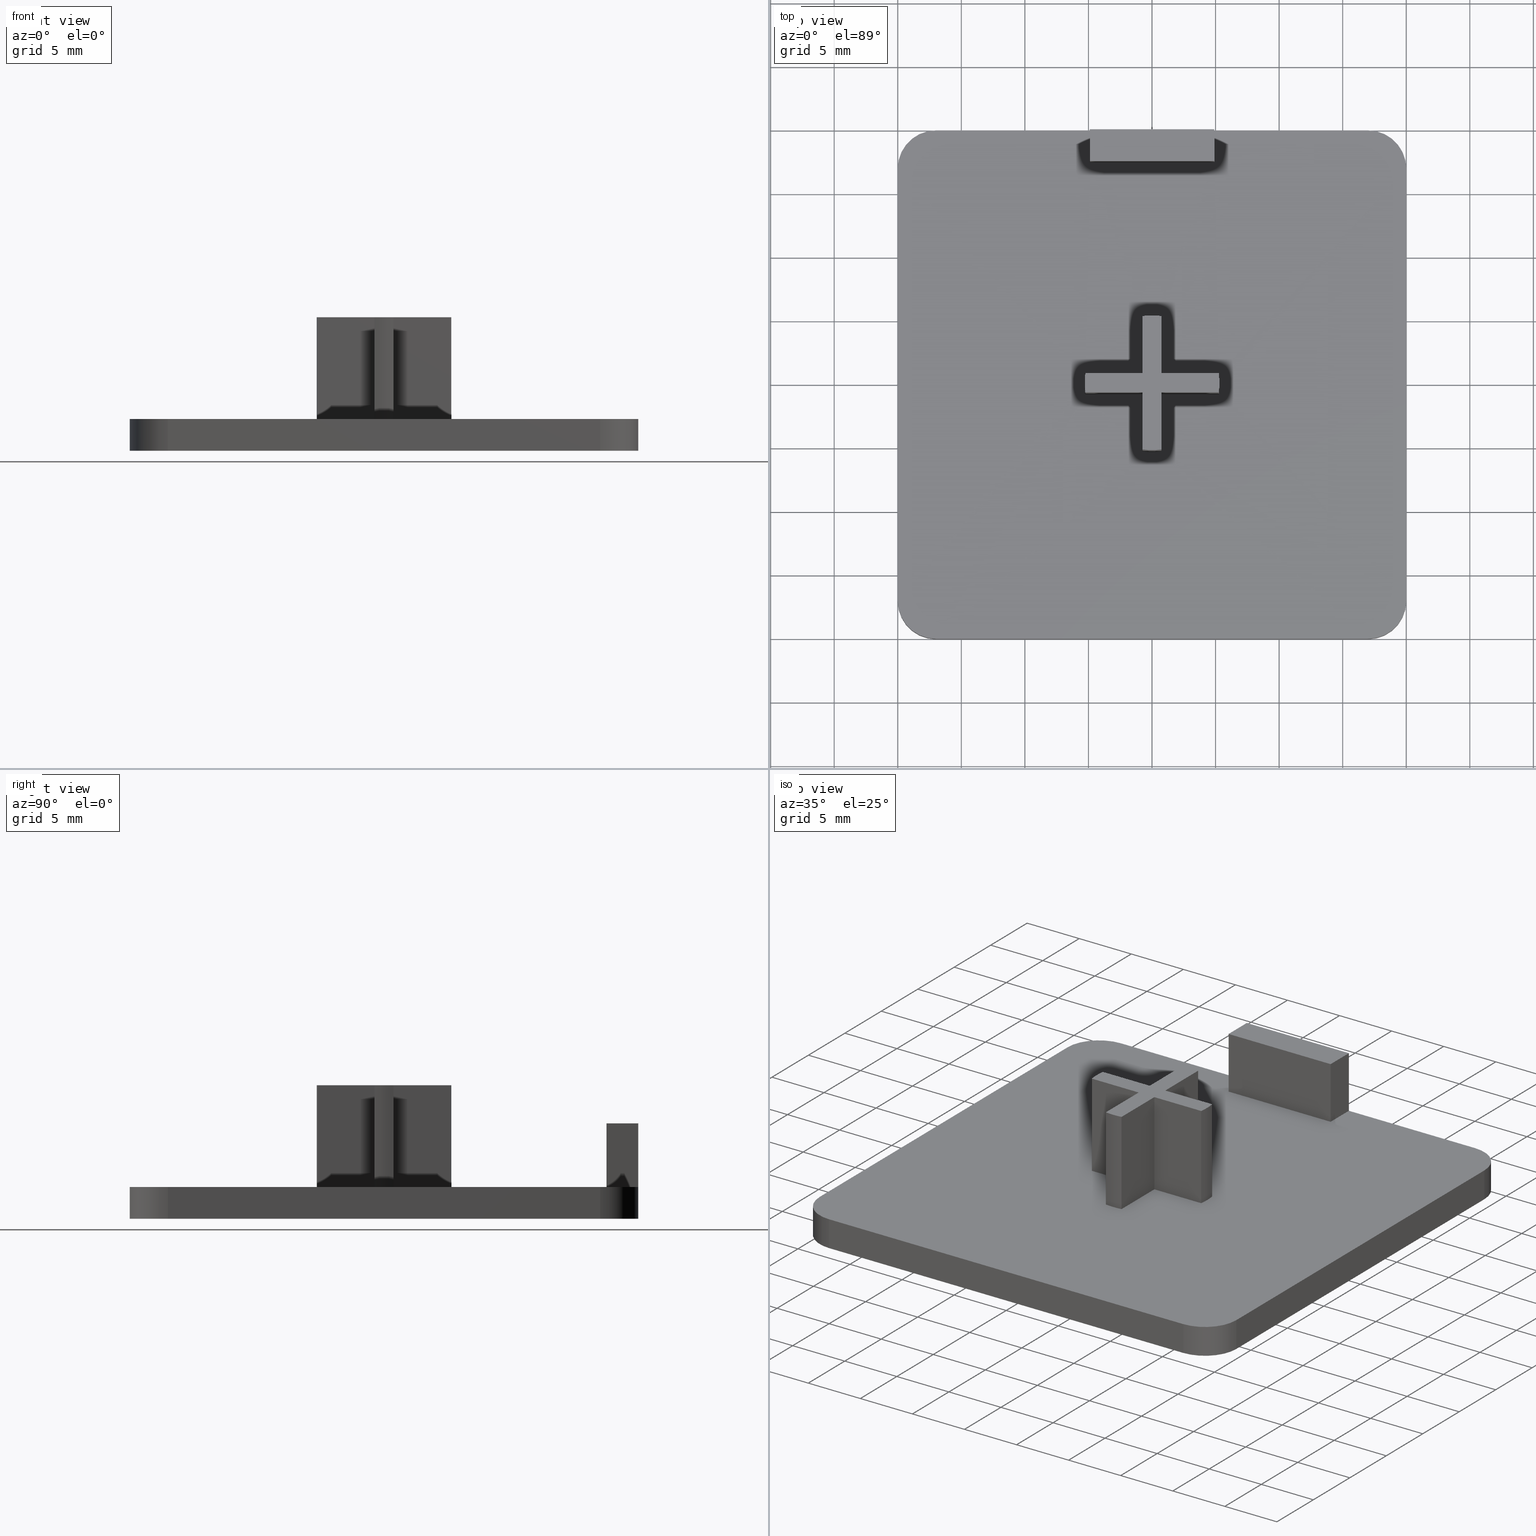
[diagram: canonical four-view strip — front | top / right | iso, engineering-drawing reading convention]
A machine part, canonical four-view strip (front | top / right | iso — engineering-drawing reading convention). The complete STEP part file that produces these views, byte-faithful:
ISO-10303-21;
HEADER;
/* Generated by software containing ST-Developer
 * from STEP Tools, Inc. (www.steptools.com) 
 */

FILE_DESCRIPTION(
/* description */ ('TAPPO 40x40 GRIGIO - CAVA 10'),
/* implementation_level */ '2;1');

FILE_NAME(
/* name */ 
'Q:\\Catalogo\\2_Accessori Dierre\\Per Download Web e catalogo cartace
o\\CATALOGO TAPPI DI CHIUSURA\\PAGINA 89\\DTPTR0000036.stp',
/* time_stamp */ '2018-11-08T10:21:41+01:00',
/* author */ ('fzagni'),
/* organization */ (''),
/* preprocessor_version */ 'ST-DEVELOPER v16.1',
/* originating_system */ 'Autodesk Inventor 2016',
/* authorisation */ '');

FILE_SCHEMA (('AUTOMOTIVE_DESIGN { 1 0 10303 214 3 1 1 }'));
ENDSEC;

DATA;
#10=MECHANICAL_DESIGN_GEOMETRIC_PRESENTATION_REPRESENTATION('',(#13),#857);
#11=SHAPE_REPRESENTATION_RELATIONSHIP('SRR','None',#866,#12);
#12=ADVANCED_BREP_SHAPE_REPRESENTATION('',(#14),#856);
#13=STYLED_ITEM('',(#875),#14);
#14=MANIFOLD_SOLID_BREP('Solido1',#517);
#15=FACE_BOUND('',#94,.T.);
#16=CIRCLE('',#521,5.3);
#17=CIRCLE('',#522,5.3);
#18=CIRCLE('',#526,5.3);
#19=CIRCLE('',#527,5.3);
#20=CIRCLE('',#531,5.29999999999997);
#21=CIRCLE('',#532,5.29999999999997);
#22=CIRCLE('',#536,5.3);
#23=CIRCLE('',#537,5.3);
#24=CIRCLE('',#546,3.00000000000001);
#25=CIRCLE('',#547,3.);
#26=CIRCLE('',#548,3.);
#27=CIRCLE('',#549,3.00000000000001);
#28=CIRCLE('',#551,3.00000000000001);
#29=CIRCLE('',#554,3.);
#30=CIRCLE('',#557,3.);
#31=CIRCLE('',#560,3.00000000000001);
#32=CYLINDRICAL_SURFACE('',#520,5.3);
#33=CYLINDRICAL_SURFACE('',#525,5.3);
#34=CYLINDRICAL_SURFACE('',#530,5.29999999999997);
#35=CYLINDRICAL_SURFACE('',#535,5.3);
#36=CYLINDRICAL_SURFACE('',#550,3.00000000000001);
#37=CYLINDRICAL_SURFACE('',#553,3.);
#38=CYLINDRICAL_SURFACE('',#556,3.);
#39=CYLINDRICAL_SURFACE('',#559,3.00000000000001);
#40=FACE_OUTER_BOUND('',#67,.T.);
#41=FACE_OUTER_BOUND('',#68,.T.);
#42=FACE_OUTER_BOUND('',#69,.T.);
#43=FACE_OUTER_BOUND('',#70,.T.);
#44=FACE_OUTER_BOUND('',#71,.T.);
#45=FACE_OUTER_BOUND('',#72,.T.);
#46=FACE_OUTER_BOUND('',#73,.T.);
#47=FACE_OUTER_BOUND('',#74,.T.);
#48=FACE_OUTER_BOUND('',#75,.T.);
#49=FACE_OUTER_BOUND('',#76,.T.);
#50=FACE_OUTER_BOUND('',#77,.T.);
#51=FACE_OUTER_BOUND('',#78,.T.);
#52=FACE_OUTER_BOUND('',#79,.T.);
#53=FACE_OUTER_BOUND('',#80,.T.);
#54=FACE_OUTER_BOUND('',#81,.T.);
#55=FACE_OUTER_BOUND('',#82,.T.);
#56=FACE_OUTER_BOUND('',#83,.T.);
#57=FACE_OUTER_BOUND('',#84,.T.);
#58=FACE_OUTER_BOUND('',#85,.T.);
#59=FACE_OUTER_BOUND('',#86,.T.);
#60=FACE_OUTER_BOUND('',#87,.T.);
#61=FACE_OUTER_BOUND('',#88,.T.);
#62=FACE_OUTER_BOUND('',#89,.T.);
#63=FACE_OUTER_BOUND('',#90,.T.);
#64=FACE_OUTER_BOUND('',#91,.T.);
#65=FACE_OUTER_BOUND('',#92,.T.);
#66=FACE_OUTER_BOUND('',#93,.T.);
#67=EDGE_LOOP('',(#327,#328,#329,#330));
#68=EDGE_LOOP('',(#331,#332,#333,#334));
#69=EDGE_LOOP('',(#335,#336,#337,#338));
#70=EDGE_LOOP('',(#339,#340,#341,#342));
#71=EDGE_LOOP('',(#343,#344,#345,#346));
#72=EDGE_LOOP('',(#347,#348,#349,#350));
#73=EDGE_LOOP('',(#351,#352,#353,#354));
#74=EDGE_LOOP('',(#355,#356,#357,#358));
#75=EDGE_LOOP('',(#359,#360,#361,#362));
#76=EDGE_LOOP('',(#363,#364,#365,#366));
#77=EDGE_LOOP('',(#367,#368,#369,#370));
#78=EDGE_LOOP('',(#371,#372,#373,#374));
#79=EDGE_LOOP('',(#375,#376,#377,#378,#379,#380,#381,#382,#383,#384,#385,
#386));
#80=EDGE_LOOP('',(#387,#388,#389,#390));
#81=EDGE_LOOP('',(#391,#392,#393,#394));
#82=EDGE_LOOP('',(#395,#396,#397,#398));
#83=EDGE_LOOP('',(#399,#400,#401,#402));
#84=EDGE_LOOP('',(#403,#404,#405,#406,#407,#408,#409,#410));
#85=EDGE_LOOP('',(#411,#412,#413,#414,#415,#416,#417,#418));
#86=EDGE_LOOP('',(#419,#420,#421,#422));
#87=EDGE_LOOP('',(#423,#424,#425,#426));
#88=EDGE_LOOP('',(#427,#428,#429,#430));
#89=EDGE_LOOP('',(#431,#432,#433,#434));
#90=EDGE_LOOP('',(#435,#436,#437,#438));
#91=EDGE_LOOP('',(#439,#440,#441,#442));
#92=EDGE_LOOP('',(#443,#444,#445,#446));
#93=EDGE_LOOP('',(#447,#448,#449,#450,#451,#452,#453,#454,#455,#456,#457,
#458));
#94=EDGE_LOOP('',(#459,#460,#461,#462,#463,#464,#465,#466,#467,#468,#469,
#470));
#95=LINE('',#710,#151);
#96=LINE('',#712,#152);
#97=LINE('',#714,#153);
#98=LINE('',#715,#154);
#99=LINE('',#720,#155);
#100=LINE('',#724,#156);
#101=LINE('',#726,#157);
#102=LINE('',#727,#158);
#103=LINE('',#730,#159);
#104=LINE('',#732,#160);
#105=LINE('',#733,#161);
#106=LINE('',#738,#162);
#107=LINE('',#742,#163);
#108=LINE('',#744,#164);
#109=LINE('',#745,#165);
#110=LINE('',#748,#166);
#111=LINE('',#750,#167);
#112=LINE('',#751,#168);
#113=LINE('',#757,#169);
#114=LINE('',#760,#170);
#115=LINE('',#762,#171);
#116=LINE('',#763,#172);
#117=LINE('',#766,#173);
#118=LINE('',#768,#174);
#119=LINE('',#769,#175);
#120=LINE('',#775,#176);
#121=LINE('',#777,#177);
#122=LINE('',#778,#178);
#123=LINE('',#783,#179);
#124=LINE('',#785,#180);
#125=LINE('',#787,#181);
#126=LINE('',#788,#182);
#127=LINE('',#791,#183);
#128=LINE('',#793,#184);
#129=LINE('',#794,#185);
#130=LINE('',#797,#186);
#131=LINE('',#799,#187);
#132=LINE('',#800,#188);
#133=LINE('',#802,#189);
#134=LINE('',#806,#190);
#135=LINE('',#808,#191);
#136=LINE('',#809,#192);
#137=LINE('',#811,#193);
#138=LINE('',#812,#194);
#139=LINE('',#817,#195);
#140=LINE('',#821,#196);
#141=LINE('',#825,#197);
#142=LINE('',#830,#198);
#143=LINE('',#833,#199);
#144=LINE('',#834,#200);
#145=LINE('',#838,#201);
#146=LINE('',#841,#202);
#147=LINE('',#842,#203);
#148=LINE('',#846,#204);
#149=LINE('',#849,#205);
#150=LINE('',#850,#206);
#151=VECTOR('',#566,4.49666560779321);
#152=VECTOR('',#567,8.);
#153=VECTOR('',#568,4.49666560779321);
#154=VECTOR('',#569,8.);
#155=VECTOR('',#574,8.);
#156=VECTOR('',#579,4.49666560779319);
#157=VECTOR('',#580,8.);
#158=VECTOR('',#581,4.49666560779319);
#159=VECTOR('',#584,4.49666560779321);
#160=VECTOR('',#585,8.);
#161=VECTOR('',#586,4.49666560779321);
#162=VECTOR('',#591,8.);
#163=VECTOR('',#596,4.4966656077932);
#164=VECTOR('',#597,8.);
#165=VECTOR('',#598,4.4966656077932);
#166=VECTOR('',#601,4.49666560779318);
#167=VECTOR('',#602,4.49666560779318);
#168=VECTOR('',#603,8.);
#169=VECTOR('',#610,8.);
#170=VECTOR('',#613,4.49666560779319);
#171=VECTOR('',#614,4.49666560779319);
#172=VECTOR('',#615,8.);
#173=VECTOR('',#618,4.49666560779321);
#174=VECTOR('',#619,4.49666560779321);
#175=VECTOR('',#620,8.);
#176=VECTOR('',#627,8.);
#177=VECTOR('',#630,4.49666560779321);
#178=VECTOR('',#631,4.49666560779321);
#179=VECTOR('',#636,9.8);
#180=VECTOR('',#637,5.);
#181=VECTOR('',#638,9.8);
#182=VECTOR('',#639,5.);
#183=VECTOR('',#642,2.50000000000001);
#184=VECTOR('',#643,5.);
#185=VECTOR('',#644,2.50000000000001);
#186=VECTOR('',#647,2.50000000000001);
#187=VECTOR('',#648,2.50000000000001);
#188=VECTOR('',#649,5.);
#189=VECTOR('',#652,9.79999999999998);
#190=VECTOR('',#655,34.);
#191=VECTOR('',#656,2.5);
#192=VECTOR('',#657,12.1);
#193=VECTOR('',#658,12.1);
#194=VECTOR('',#659,2.5);
#195=VECTOR('',#664,34.);
#196=VECTOR('',#667,34.);
#197=VECTOR('',#670,34.);
#198=VECTOR('',#677,2.5);
#199=VECTOR('',#680,34.);
#200=VECTOR('',#681,2.5);
#201=VECTOR('',#686,2.5);
#202=VECTOR('',#689,34.);
#203=VECTOR('',#690,2.5);
#204=VECTOR('',#695,2.5);
#205=VECTOR('',#698,34.);
#206=VECTOR('',#699,2.5);
#207=VERTEX_POINT('',#708);
#208=VERTEX_POINT('',#709);
#209=VERTEX_POINT('',#711);
#210=VERTEX_POINT('',#713);
#211=VERTEX_POINT('',#717);
#212=VERTEX_POINT('',#719);
#213=VERTEX_POINT('',#723);
#214=VERTEX_POINT('',#725);
#215=VERTEX_POINT('',#729);
#216=VERTEX_POINT('',#731);
#217=VERTEX_POINT('',#735);
#218=VERTEX_POINT('',#737);
#219=VERTEX_POINT('',#741);
#220=VERTEX_POINT('',#743);
#221=VERTEX_POINT('',#747);
#222=VERTEX_POINT('',#749);
#223=VERTEX_POINT('',#753);
#224=VERTEX_POINT('',#755);
#225=VERTEX_POINT('',#759);
#226=VERTEX_POINT('',#761);
#227=VERTEX_POINT('',#765);
#228=VERTEX_POINT('',#767);
#229=VERTEX_POINT('',#771);
#230=VERTEX_POINT('',#773);
#231=VERTEX_POINT('',#781);
#232=VERTEX_POINT('',#782);
#233=VERTEX_POINT('',#784);
#234=VERTEX_POINT('',#786);
#235=VERTEX_POINT('',#790);
#236=VERTEX_POINT('',#792);
#237=VERTEX_POINT('',#796);
#238=VERTEX_POINT('',#798);
#239=VERTEX_POINT('',#804);
#240=VERTEX_POINT('',#805);
#241=VERTEX_POINT('',#807);
#242=VERTEX_POINT('',#810);
#243=VERTEX_POINT('',#814);
#244=VERTEX_POINT('',#816);
#245=VERTEX_POINT('',#818);
#246=VERTEX_POINT('',#820);
#247=VERTEX_POINT('',#822);
#248=VERTEX_POINT('',#824);
#249=VERTEX_POINT('',#828);
#250=VERTEX_POINT('',#832);
#251=VERTEX_POINT('',#836);
#252=VERTEX_POINT('',#840);
#253=VERTEX_POINT('',#844);
#254=VERTEX_POINT('',#848);
#255=EDGE_CURVE('',#207,#208,#95,.T.);
#256=EDGE_CURVE('',#207,#209,#96,.T.);
#257=EDGE_CURVE('',#210,#209,#97,.T.);
#258=EDGE_CURVE('',#208,#210,#98,.T.);
#259=EDGE_CURVE('',#211,#207,#16,.T.);
#260=EDGE_CURVE('',#211,#212,#99,.T.);
#261=EDGE_CURVE('',#209,#212,#17,.T.);
#262=EDGE_CURVE('',#213,#211,#100,.T.);
#263=EDGE_CURVE('',#213,#214,#101,.T.);
#264=EDGE_CURVE('',#212,#214,#102,.T.);
#265=EDGE_CURVE('',#215,#213,#103,.T.);
#266=EDGE_CURVE('',#215,#216,#104,.T.);
#267=EDGE_CURVE('',#214,#216,#105,.T.);
#268=EDGE_CURVE('',#217,#215,#18,.T.);
#269=EDGE_CURVE('',#217,#218,#106,.T.);
#270=EDGE_CURVE('',#216,#218,#19,.T.);
#271=EDGE_CURVE('',#219,#217,#107,.T.);
#272=EDGE_CURVE('',#219,#220,#108,.T.);
#273=EDGE_CURVE('',#218,#220,#109,.T.);
#274=EDGE_CURVE('',#208,#221,#110,.T.);
#275=EDGE_CURVE('',#222,#210,#111,.T.);
#276=EDGE_CURVE('',#221,#222,#112,.T.);
#277=EDGE_CURVE('',#221,#223,#20,.T.);
#278=EDGE_CURVE('',#224,#222,#21,.T.);
#279=EDGE_CURVE('',#223,#224,#113,.T.);
#280=EDGE_CURVE('',#223,#225,#114,.T.);
#281=EDGE_CURVE('',#226,#224,#115,.T.);
#282=EDGE_CURVE('',#225,#226,#116,.T.);
#283=EDGE_CURVE('',#225,#227,#117,.T.);
#284=EDGE_CURVE('',#228,#226,#118,.T.);
#285=EDGE_CURVE('',#227,#228,#119,.T.);
#286=EDGE_CURVE('',#227,#229,#22,.T.);
#287=EDGE_CURVE('',#230,#228,#23,.T.);
#288=EDGE_CURVE('',#229,#230,#120,.T.);
#289=EDGE_CURVE('',#229,#219,#121,.T.);
#290=EDGE_CURVE('',#220,#230,#122,.T.);
#291=EDGE_CURVE('',#231,#232,#123,.T.);
#292=EDGE_CURVE('',#231,#233,#124,.T.);
#293=EDGE_CURVE('',#234,#233,#125,.T.);
#294=EDGE_CURVE('',#232,#234,#126,.T.);
#295=EDGE_CURVE('',#235,#231,#127,.T.);
#296=EDGE_CURVE('',#235,#236,#128,.T.);
#297=EDGE_CURVE('',#233,#236,#129,.T.);
#298=EDGE_CURVE('',#232,#237,#130,.T.);
#299=EDGE_CURVE('',#238,#234,#131,.T.);
#300=EDGE_CURVE('',#237,#238,#132,.T.);
#301=EDGE_CURVE('',#236,#238,#133,.T.);
#302=EDGE_CURVE('',#239,#240,#134,.T.);
#303=EDGE_CURVE('',#240,#241,#135,.T.);
#304=EDGE_CURVE('',#237,#241,#136,.T.);
#305=EDGE_CURVE('',#242,#235,#137,.T.);
#306=EDGE_CURVE('',#239,#242,#138,.T.);
#307=EDGE_CURVE('',#243,#239,#24,.T.);
#308=EDGE_CURVE('',#244,#243,#139,.T.);
#309=EDGE_CURVE('',#245,#244,#25,.T.);
#310=EDGE_CURVE('',#246,#245,#140,.T.);
#311=EDGE_CURVE('',#247,#246,#26,.T.);
#312=EDGE_CURVE('',#248,#247,#141,.T.);
#313=EDGE_CURVE('',#240,#248,#27,.T.);
#314=EDGE_CURVE('',#249,#242,#28,.T.);
#315=EDGE_CURVE('',#243,#249,#142,.T.);
#316=EDGE_CURVE('',#250,#249,#143,.T.);
#317=EDGE_CURVE('',#244,#250,#144,.T.);
#318=EDGE_CURVE('',#251,#250,#29,.T.);
#319=EDGE_CURVE('',#245,#251,#145,.T.);
#320=EDGE_CURVE('',#252,#251,#146,.T.);
#321=EDGE_CURVE('',#246,#252,#147,.T.);
#322=EDGE_CURVE('',#253,#252,#30,.T.);
#323=EDGE_CURVE('',#247,#253,#148,.T.);
#324=EDGE_CURVE('',#254,#253,#149,.T.);
#325=EDGE_CURVE('',#248,#254,#150,.T.);
#326=EDGE_CURVE('',#241,#254,#31,.T.);
#327=ORIENTED_EDGE('',*,*,#255,.F.);
#328=ORIENTED_EDGE('',*,*,#256,.T.);
#329=ORIENTED_EDGE('',*,*,#257,.F.);
#330=ORIENTED_EDGE('',*,*,#258,.F.);
#331=ORIENTED_EDGE('',*,*,#259,.F.);
#332=ORIENTED_EDGE('',*,*,#260,.T.);
#333=ORIENTED_EDGE('',*,*,#261,.F.);
#334=ORIENTED_EDGE('',*,*,#256,.F.);
#335=ORIENTED_EDGE('',*,*,#262,.F.);
#336=ORIENTED_EDGE('',*,*,#263,.T.);
#337=ORIENTED_EDGE('',*,*,#264,.F.);
#338=ORIENTED_EDGE('',*,*,#260,.F.);
#339=ORIENTED_EDGE('',*,*,#265,.F.);
#340=ORIENTED_EDGE('',*,*,#266,.T.);
#341=ORIENTED_EDGE('',*,*,#267,.F.);
#342=ORIENTED_EDGE('',*,*,#263,.F.);
#343=ORIENTED_EDGE('',*,*,#268,.F.);
#344=ORIENTED_EDGE('',*,*,#269,.T.);
#345=ORIENTED_EDGE('',*,*,#270,.F.);
#346=ORIENTED_EDGE('',*,*,#266,.F.);
#347=ORIENTED_EDGE('',*,*,#271,.F.);
#348=ORIENTED_EDGE('',*,*,#272,.T.);
#349=ORIENTED_EDGE('',*,*,#273,.F.);
#350=ORIENTED_EDGE('',*,*,#269,.F.);
#351=ORIENTED_EDGE('',*,*,#274,.F.);
#352=ORIENTED_EDGE('',*,*,#258,.T.);
#353=ORIENTED_EDGE('',*,*,#275,.F.);
#354=ORIENTED_EDGE('',*,*,#276,.F.);
#355=ORIENTED_EDGE('',*,*,#277,.F.);
#356=ORIENTED_EDGE('',*,*,#276,.T.);
#357=ORIENTED_EDGE('',*,*,#278,.F.);
#358=ORIENTED_EDGE('',*,*,#279,.F.);
#359=ORIENTED_EDGE('',*,*,#280,.F.);
#360=ORIENTED_EDGE('',*,*,#279,.T.);
#361=ORIENTED_EDGE('',*,*,#281,.F.);
#362=ORIENTED_EDGE('',*,*,#282,.F.);
#363=ORIENTED_EDGE('',*,*,#283,.F.);
#364=ORIENTED_EDGE('',*,*,#282,.T.);
#365=ORIENTED_EDGE('',*,*,#284,.F.);
#366=ORIENTED_EDGE('',*,*,#285,.F.);
#367=ORIENTED_EDGE('',*,*,#286,.F.);
#368=ORIENTED_EDGE('',*,*,#285,.T.);
#369=ORIENTED_EDGE('',*,*,#287,.F.);
#370=ORIENTED_EDGE('',*,*,#288,.F.);
#371=ORIENTED_EDGE('',*,*,#289,.F.);
#372=ORIENTED_EDGE('',*,*,#288,.T.);
#373=ORIENTED_EDGE('',*,*,#290,.F.);
#374=ORIENTED_EDGE('',*,*,#272,.F.);
#375=ORIENTED_EDGE('',*,*,#290,.T.);
#376=ORIENTED_EDGE('',*,*,#287,.T.);
#377=ORIENTED_EDGE('',*,*,#284,.T.);
#378=ORIENTED_EDGE('',*,*,#281,.T.);
#379=ORIENTED_EDGE('',*,*,#278,.T.);
#380=ORIENTED_EDGE('',*,*,#275,.T.);
#381=ORIENTED_EDGE('',*,*,#257,.T.);
#382=ORIENTED_EDGE('',*,*,#261,.T.);
#383=ORIENTED_EDGE('',*,*,#264,.T.);
#384=ORIENTED_EDGE('',*,*,#267,.T.);
#385=ORIENTED_EDGE('',*,*,#270,.T.);
#386=ORIENTED_EDGE('',*,*,#273,.T.);
#387=ORIENTED_EDGE('',*,*,#291,.F.);
#388=ORIENTED_EDGE('',*,*,#292,.T.);
#389=ORIENTED_EDGE('',*,*,#293,.F.);
#390=ORIENTED_EDGE('',*,*,#294,.F.);
#391=ORIENTED_EDGE('',*,*,#295,.F.);
#392=ORIENTED_EDGE('',*,*,#296,.T.);
#393=ORIENTED_EDGE('',*,*,#297,.F.);
#394=ORIENTED_EDGE('',*,*,#292,.F.);
#395=ORIENTED_EDGE('',*,*,#298,.F.);
#396=ORIENTED_EDGE('',*,*,#294,.T.);
#397=ORIENTED_EDGE('',*,*,#299,.F.);
#398=ORIENTED_EDGE('',*,*,#300,.F.);
#399=ORIENTED_EDGE('',*,*,#299,.T.);
#400=ORIENTED_EDGE('',*,*,#293,.T.);
#401=ORIENTED_EDGE('',*,*,#297,.T.);
#402=ORIENTED_EDGE('',*,*,#301,.T.);
#403=ORIENTED_EDGE('',*,*,#302,.T.);
#404=ORIENTED_EDGE('',*,*,#303,.T.);
#405=ORIENTED_EDGE('',*,*,#304,.F.);
#406=ORIENTED_EDGE('',*,*,#300,.T.);
#407=ORIENTED_EDGE('',*,*,#301,.F.);
#408=ORIENTED_EDGE('',*,*,#296,.F.);
#409=ORIENTED_EDGE('',*,*,#305,.F.);
#410=ORIENTED_EDGE('',*,*,#306,.F.);
#411=ORIENTED_EDGE('',*,*,#302,.F.);
#412=ORIENTED_EDGE('',*,*,#307,.F.);
#413=ORIENTED_EDGE('',*,*,#308,.F.);
#414=ORIENTED_EDGE('',*,*,#309,.F.);
#415=ORIENTED_EDGE('',*,*,#310,.F.);
#416=ORIENTED_EDGE('',*,*,#311,.F.);
#417=ORIENTED_EDGE('',*,*,#312,.F.);
#418=ORIENTED_EDGE('',*,*,#313,.F.);
#419=ORIENTED_EDGE('',*,*,#307,.T.);
#420=ORIENTED_EDGE('',*,*,#306,.T.);
#421=ORIENTED_EDGE('',*,*,#314,.F.);
#422=ORIENTED_EDGE('',*,*,#315,.F.);
#423=ORIENTED_EDGE('',*,*,#308,.T.);
#424=ORIENTED_EDGE('',*,*,#315,.T.);
#425=ORIENTED_EDGE('',*,*,#316,.F.);
#426=ORIENTED_EDGE('',*,*,#317,.F.);
#427=ORIENTED_EDGE('',*,*,#309,.T.);
#428=ORIENTED_EDGE('',*,*,#317,.T.);
#429=ORIENTED_EDGE('',*,*,#318,.F.);
#430=ORIENTED_EDGE('',*,*,#319,.F.);
#431=ORIENTED_EDGE('',*,*,#310,.T.);
#432=ORIENTED_EDGE('',*,*,#319,.T.);
#433=ORIENTED_EDGE('',*,*,#320,.F.);
#434=ORIENTED_EDGE('',*,*,#321,.F.);
#435=ORIENTED_EDGE('',*,*,#311,.T.);
#436=ORIENTED_EDGE('',*,*,#321,.T.);
#437=ORIENTED_EDGE('',*,*,#322,.F.);
#438=ORIENTED_EDGE('',*,*,#323,.F.);
#439=ORIENTED_EDGE('',*,*,#312,.T.);
#440=ORIENTED_EDGE('',*,*,#323,.T.);
#441=ORIENTED_EDGE('',*,*,#324,.F.);
#442=ORIENTED_EDGE('',*,*,#325,.F.);
#443=ORIENTED_EDGE('',*,*,#313,.T.);
#444=ORIENTED_EDGE('',*,*,#325,.T.);
#445=ORIENTED_EDGE('',*,*,#326,.F.);
#446=ORIENTED_EDGE('',*,*,#303,.F.);
#447=ORIENTED_EDGE('',*,*,#298,.T.);
#448=ORIENTED_EDGE('',*,*,#304,.T.);
#449=ORIENTED_EDGE('',*,*,#326,.T.);
#450=ORIENTED_EDGE('',*,*,#324,.T.);
#451=ORIENTED_EDGE('',*,*,#322,.T.);
#452=ORIENTED_EDGE('',*,*,#320,.T.);
#453=ORIENTED_EDGE('',*,*,#318,.T.);
#454=ORIENTED_EDGE('',*,*,#316,.T.);
#455=ORIENTED_EDGE('',*,*,#314,.T.);
#456=ORIENTED_EDGE('',*,*,#305,.T.);
#457=ORIENTED_EDGE('',*,*,#295,.T.);
#458=ORIENTED_EDGE('',*,*,#291,.T.);
#459=ORIENTED_EDGE('',*,*,#271,.T.);
#460=ORIENTED_EDGE('',*,*,#268,.T.);
#461=ORIENTED_EDGE('',*,*,#265,.T.);
#462=ORIENTED_EDGE('',*,*,#262,.T.);
#463=ORIENTED_EDGE('',*,*,#259,.T.);
#464=ORIENTED_EDGE('',*,*,#255,.T.);
#465=ORIENTED_EDGE('',*,*,#274,.T.);
#466=ORIENTED_EDGE('',*,*,#277,.T.);
#467=ORIENTED_EDGE('',*,*,#280,.T.);
#468=ORIENTED_EDGE('',*,*,#283,.T.);
#469=ORIENTED_EDGE('',*,*,#286,.T.);
#470=ORIENTED_EDGE('',*,*,#289,.T.);
#471=PLANE('',#519);
#472=PLANE('',#523);
#473=PLANE('',#524);
#474=PLANE('',#528);
#475=PLANE('',#529);
#476=PLANE('',#533);
#477=PLANE('',#534);
#478=PLANE('',#538);
#479=PLANE('',#539);
#480=PLANE('',#540);
#481=PLANE('',#541);
#482=PLANE('',#542);
#483=PLANE('',#543);
#484=PLANE('',#544);
#485=PLANE('',#545);
#486=PLANE('',#552);
#487=PLANE('',#555);
#488=PLANE('',#558);
#489=PLANE('',#561);
#490=ADVANCED_FACE('',(#40),#471,.T.);
#491=ADVANCED_FACE('',(#41),#32,.T.);
#492=ADVANCED_FACE('',(#42),#472,.T.);
#493=ADVANCED_FACE('',(#43),#473,.T.);
#494=ADVANCED_FACE('',(#44),#33,.T.);
#495=ADVANCED_FACE('',(#45),#474,.T.);
#496=ADVANCED_FACE('',(#46),#475,.T.);
#497=ADVANCED_FACE('',(#47),#34,.T.);
#498=ADVANCED_FACE('',(#48),#476,.T.);
#499=ADVANCED_FACE('',(#49),#477,.T.);
#500=ADVANCED_FACE('',(#50),#35,.T.);
#501=ADVANCED_FACE('',(#51),#478,.T.);
#502=ADVANCED_FACE('',(#52),#479,.T.);
#503=ADVANCED_FACE('',(#53),#480,.T.);
#504=ADVANCED_FACE('',(#54),#481,.T.);
#505=ADVANCED_FACE('',(#55),#482,.T.);
#506=ADVANCED_FACE('',(#56),#483,.T.);
#507=ADVANCED_FACE('',(#57),#484,.T.);
#508=ADVANCED_FACE('',(#58),#485,.F.);
#509=ADVANCED_FACE('',(#59),#36,.T.);
#510=ADVANCED_FACE('',(#60),#486,.T.);
#511=ADVANCED_FACE('',(#61),#37,.T.);
#512=ADVANCED_FACE('',(#62),#487,.T.);
#513=ADVANCED_FACE('',(#63),#38,.T.);
#514=ADVANCED_FACE('',(#64),#488,.T.);
#515=ADVANCED_FACE('',(#65),#39,.T.);
#516=ADVANCED_FACE('',(#66,#15),#489,.T.);
#517=CLOSED_SHELL('',(#490,#491,#492,#493,#494,#495,#496,#497,#498,#499,
#500,#501,#502,#503,#504,#505,#506,#507,#508,#509,#510,#511,#512,#513,#514,
#515,#516));
#518=AXIS2_PLACEMENT_3D('placement',#706,#562,#563);
#519=AXIS2_PLACEMENT_3D('',#707,#564,#565);
#520=AXIS2_PLACEMENT_3D('',#716,#570,#571);
#521=AXIS2_PLACEMENT_3D('',#718,#572,#573);
#522=AXIS2_PLACEMENT_3D('',#721,#575,#576);
#523=AXIS2_PLACEMENT_3D('',#722,#577,#578);
#524=AXIS2_PLACEMENT_3D('',#728,#582,#583);
#525=AXIS2_PLACEMENT_3D('',#734,#587,#588);
#526=AXIS2_PLACEMENT_3D('',#736,#589,#590);
#527=AXIS2_PLACEMENT_3D('',#739,#592,#593);
#528=AXIS2_PLACEMENT_3D('',#740,#594,#595);
#529=AXIS2_PLACEMENT_3D('',#746,#599,#600);
#530=AXIS2_PLACEMENT_3D('',#752,#604,#605);
#531=AXIS2_PLACEMENT_3D('',#754,#606,#607);
#532=AXIS2_PLACEMENT_3D('',#756,#608,#609);
#533=AXIS2_PLACEMENT_3D('',#758,#611,#612);
#534=AXIS2_PLACEMENT_3D('',#764,#616,#617);
#535=AXIS2_PLACEMENT_3D('',#770,#621,#622);
#536=AXIS2_PLACEMENT_3D('',#772,#623,#624);
#537=AXIS2_PLACEMENT_3D('',#774,#625,#626);
#538=AXIS2_PLACEMENT_3D('',#776,#628,#629);
#539=AXIS2_PLACEMENT_3D('',#779,#632,#633);
#540=AXIS2_PLACEMENT_3D('',#780,#634,#635);
#541=AXIS2_PLACEMENT_3D('',#789,#640,#641);
#542=AXIS2_PLACEMENT_3D('',#795,#645,#646);
#543=AXIS2_PLACEMENT_3D('',#801,#650,#651);
#544=AXIS2_PLACEMENT_3D('',#803,#653,#654);
#545=AXIS2_PLACEMENT_3D('',#813,#660,#661);
#546=AXIS2_PLACEMENT_3D('',#815,#662,#663);
#547=AXIS2_PLACEMENT_3D('',#819,#665,#666);
#548=AXIS2_PLACEMENT_3D('',#823,#668,#669);
#549=AXIS2_PLACEMENT_3D('',#826,#671,#672);
#550=AXIS2_PLACEMENT_3D('',#827,#673,#674);
#551=AXIS2_PLACEMENT_3D('',#829,#675,#676);
#552=AXIS2_PLACEMENT_3D('',#831,#678,#679);
#553=AXIS2_PLACEMENT_3D('',#835,#682,#683);
#554=AXIS2_PLACEMENT_3D('',#837,#684,#685);
#555=AXIS2_PLACEMENT_3D('',#839,#687,#688);
#556=AXIS2_PLACEMENT_3D('',#843,#691,#692);
#557=AXIS2_PLACEMENT_3D('',#845,#693,#694);
#558=AXIS2_PLACEMENT_3D('',#847,#696,#697);
#559=AXIS2_PLACEMENT_3D('',#851,#700,#701);
#560=AXIS2_PLACEMENT_3D('',#852,#702,#703);
#561=AXIS2_PLACEMENT_3D('',#853,#704,#705);
#562=DIRECTION('axis',(0.,0.,1.));
#563=DIRECTION('refdir',(1.,0.,0.));
#564=DIRECTION('center_axis',(2.61713124512323E-14,-1.,0.));
#565=DIRECTION('ref_axis',(1.,2.61679566904149E-14,0.));
#566=DIRECTION('',(-1.,-2.61713124512323E-14,0.));
#567=DIRECTION('',(0.,0.,1.));
#568=DIRECTION('',(1.,2.61713124512323E-14,0.));
#569=DIRECTION('',(0.,0.,1.));
#570=DIRECTION('center_axis',(0.,0.,1.));
#571=DIRECTION('ref_axis',(0.989936907130796,-0.141509433962242,0.));
#572=DIRECTION('center_axis',(0.,0.,-1.));
#573=DIRECTION('ref_axis',(0.989936907130796,-0.141509433962242,0.));
#574=DIRECTION('',(0.,0.,1.));
#575=DIRECTION('center_axis',(0.,0.,1.));
#576=DIRECTION('ref_axis',(0.989936907130796,-0.141509433962242,0.));
#577=DIRECTION('center_axis',(0.,1.,0.));
#578=DIRECTION('ref_axis',(-1.,0.,0.));
#579=DIRECTION('',(1.,0.,0.));
#580=DIRECTION('',(0.,0.,1.));
#581=DIRECTION('',(-1.,0.,0.));
#582=DIRECTION('center_axis',(1.,2.96279008881876E-15,0.));
#583=DIRECTION('ref_axis',(-2.96429547574917E-15,1.,0.));
#584=DIRECTION('',(2.96279008881876E-15,-1.,0.));
#585=DIRECTION('',(0.,0.,1.));
#586=DIRECTION('',(-2.96279008881876E-15,1.,0.));
#587=DIRECTION('center_axis',(0.,0.,1.));
#588=DIRECTION('ref_axis',(0.141509433962262,0.989936907130793,0.));
#589=DIRECTION('center_axis',(0.,0.,-1.));
#590=DIRECTION('ref_axis',(0.141509433962262,0.989936907130793,0.));
#591=DIRECTION('',(0.,0.,1.));
#592=DIRECTION('center_axis',(0.,0.,1.));
#593=DIRECTION('ref_axis',(0.141509433962262,0.989936907130793,0.));
#594=DIRECTION('center_axis',(-1.,0.,0.));
#595=DIRECTION('ref_axis',(0.,-1.,0.));
#596=DIRECTION('',(0.,1.,0.));
#597=DIRECTION('',(0.,0.,1.));
#598=DIRECTION('',(0.,-1.,0.));
#599=DIRECTION('center_axis',(1.,0.,0.));
#600=DIRECTION('ref_axis',(0.,1.,0.));
#601=DIRECTION('',(0.,-1.,0.));
#602=DIRECTION('',(0.,1.,0.));
#603=DIRECTION('',(0.,0.,1.));
#604=DIRECTION('center_axis',(0.,0.,1.));
#605=DIRECTION('ref_axis',(-0.141509433962248,-0.989936907130795,0.));
#606=DIRECTION('center_axis',(0.,0.,-1.));
#607=DIRECTION('ref_axis',(-0.141509433962248,-0.989936907130795,0.));
#608=DIRECTION('center_axis',(0.,0.,1.));
#609=DIRECTION('ref_axis',(-0.141509433962248,-0.989936907130795,0.));
#610=DIRECTION('',(0.,0.,1.));
#611=DIRECTION('center_axis',(-1.,-1.97519339254584E-14,0.));
#612=DIRECTION('ref_axis',(1.97508676080815E-14,-1.,0.));
#613=DIRECTION('',(-1.97519339254584E-14,1.,0.));
#614=DIRECTION('',(1.97519339254584E-14,-1.,0.));
#615=DIRECTION('',(0.,0.,1.));
#616=DIRECTION('center_axis',(0.,-1.,0.));
#617=DIRECTION('ref_axis',(1.,0.,0.));
#618=DIRECTION('',(-1.,0.,0.));
#619=DIRECTION('',(1.,0.,0.));
#620=DIRECTION('',(0.,0.,1.));
#621=DIRECTION('center_axis',(0.,0.,1.));
#622=DIRECTION('ref_axis',(-0.989936907130793,0.141509433962264,0.));
#623=DIRECTION('center_axis',(0.,0.,-1.));
#624=DIRECTION('ref_axis',(-0.989936907130793,0.141509433962264,0.));
#625=DIRECTION('center_axis',(0.,0.,1.));
#626=DIRECTION('ref_axis',(-0.989936907130793,0.141509433962264,0.));
#627=DIRECTION('',(0.,0.,1.));
#628=DIRECTION('center_axis',(0.,1.,0.));
#629=DIRECTION('ref_axis',(-1.,0.,0.));
#630=DIRECTION('',(1.,0.,0.));
#631=DIRECTION('',(-1.,0.,0.));
#632=DIRECTION('center_axis',(0.,0.,1.));
#633=DIRECTION('ref_axis',(1.,0.,0.));
#634=DIRECTION('center_axis',(0.,-1.,0.));
#635=DIRECTION('ref_axis',(1.,0.,0.));
#636=DIRECTION('',(-1.,0.,0.));
#637=DIRECTION('',(0.,0.,1.));
#638=DIRECTION('',(1.,0.,0.));
#639=DIRECTION('',(0.,0.,1.));
#640=DIRECTION('center_axis',(1.,5.32907051820073E-15,0.));
#641=DIRECTION('ref_axis',(-5.32907051820075E-15,1.,0.));
#642=DIRECTION('',(5.32907051820073E-15,-1.,0.));
#643=DIRECTION('',(0.,0.,1.));
#644=DIRECTION('',(-5.32907051820073E-15,1.,0.));
#645=DIRECTION('center_axis',(-1.,0.,0.));
#646=DIRECTION('ref_axis',(0.,-1.,0.));
#647=DIRECTION('',(0.,1.,0.));
#648=DIRECTION('',(0.,-1.,0.));
#649=DIRECTION('',(0.,0.,1.));
#650=DIRECTION('center_axis',(0.,0.,1.));
#651=DIRECTION('ref_axis',(1.,0.,0.));
#652=DIRECTION('',(-1.,0.,0.));
#653=DIRECTION('center_axis',(0.,1.,0.));
#654=DIRECTION('ref_axis',(-1.,0.,0.));
#655=DIRECTION('',(-1.,0.,0.));
#656=DIRECTION('',(0.,0.,1.));
#657=DIRECTION('',(-1.,0.,0.));
#658=DIRECTION('',(-1.,0.,0.));
#659=DIRECTION('',(0.,0.,1.));
#660=DIRECTION('center_axis',(0.,0.,1.));
#661=DIRECTION('ref_axis',(1.,0.,0.));
#662=DIRECTION('center_axis',(0.,0.,1.));
#663=DIRECTION('ref_axis',(1.,0.,0.));
#664=DIRECTION('',(2.61228946970625E-16,1.,0.));
#665=DIRECTION('center_axis',(0.,0.,1.));
#666=DIRECTION('ref_axis',(1.77635683940025E-14,-1.,0.));
#667=DIRECTION('',(1.,0.,0.));
#668=DIRECTION('center_axis',(0.,0.,1.));
#669=DIRECTION('ref_axis',(-1.,0.,0.));
#670=DIRECTION('',(3.91843420455938E-16,-1.,0.));
#671=DIRECTION('center_axis',(0.,0.,1.));
#672=DIRECTION('ref_axis',(0.,1.,0.));
#673=DIRECTION('center_axis',(0.,0.,1.));
#674=DIRECTION('ref_axis',(1.,0.,0.));
#675=DIRECTION('center_axis',(0.,0.,1.));
#676=DIRECTION('ref_axis',(1.,0.,0.));
#677=DIRECTION('',(0.,0.,1.));
#678=DIRECTION('center_axis',(1.,-2.61228946970625E-16,0.));
#679=DIRECTION('ref_axis',(3.5527136788005E-16,1.,0.));
#680=DIRECTION('',(2.61228946970625E-16,1.,0.));
#681=DIRECTION('',(0.,0.,1.));
#682=DIRECTION('center_axis',(0.,0.,1.));
#683=DIRECTION('ref_axis',(1.77635683940025E-14,-1.,0.));
#684=DIRECTION('center_axis',(0.,0.,1.));
#685=DIRECTION('ref_axis',(1.77635683940025E-14,-1.,0.));
#686=DIRECTION('',(0.,0.,1.));
#687=DIRECTION('center_axis',(0.,-1.,0.));
#688=DIRECTION('ref_axis',(1.,0.,0.));
#689=DIRECTION('',(1.,0.,0.));
#690=DIRECTION('',(0.,0.,1.));
#691=DIRECTION('center_axis',(0.,0.,1.));
#692=DIRECTION('ref_axis',(-1.,0.,0.));
#693=DIRECTION('center_axis',(0.,0.,1.));
#694=DIRECTION('ref_axis',(-1.,0.,0.));
#695=DIRECTION('',(0.,0.,1.));
#696=DIRECTION('center_axis',(-1.,-3.91843420455938E-16,0.));
#697=DIRECTION('ref_axis',(3.5527136788005E-16,-1.,0.));
#698=DIRECTION('',(3.91843420455938E-16,-1.,0.));
#699=DIRECTION('',(0.,0.,1.));
#700=DIRECTION('center_axis',(0.,0.,1.));
#701=DIRECTION('ref_axis',(0.,1.,0.));
#702=DIRECTION('center_axis',(0.,0.,1.));
#703=DIRECTION('ref_axis',(0.,1.,0.));
#704=DIRECTION('center_axis',(0.,0.,1.));
#705=DIRECTION('ref_axis',(1.,0.,0.));
#706=CARTESIAN_POINT('',(0.,0.,0.));
#707=CARTESIAN_POINT('Origin',(0.750000000000002,-0.749999999999997,0.));
#708=CARTESIAN_POINT('',(5.24666560779321,-0.74999999999988,2.5));
#709=CARTESIAN_POINT('',(0.750000000000002,-0.749999999999997,2.5));
#710=CARTESIAN_POINT('',(0.375000000000252,-0.750000000000007,2.5));
#711=CARTESIAN_POINT('',(5.24666560779321,-0.74999999999988,10.5));
#712=CARTESIAN_POINT('',(5.24666560779321,-0.74999999999988,0.));
#713=CARTESIAN_POINT('',(0.750000000000002,-0.749999999999997,10.5));
#714=CARTESIAN_POINT('',(0.750000000000002,-0.749999999999997,10.5));
#715=CARTESIAN_POINT('',(0.750000000000002,-0.749999999999997,0.));
#716=CARTESIAN_POINT('Origin',(0.,0.,0.));
#717=CARTESIAN_POINT('',(5.24666560779319,0.750000000000002,2.5));
#718=CARTESIAN_POINT('Origin',(0.,0.,2.5));
#719=CARTESIAN_POINT('',(5.24666560779319,0.750000000000002,10.5));
#720=CARTESIAN_POINT('',(5.24666560779319,0.750000000000002,0.));
#721=CARTESIAN_POINT('Origin',(0.,0.,10.5));
#722=CARTESIAN_POINT('Origin',(5.24666560779319,0.750000000000002,0.));
#723=CARTESIAN_POINT('',(0.750000000000002,0.750000000000002,2.5));
#724=CARTESIAN_POINT('',(2.62333280389659,0.750000000000002,2.5));
#725=CARTESIAN_POINT('',(0.750000000000002,0.750000000000002,10.5));
#726=CARTESIAN_POINT('',(0.750000000000002,0.750000000000002,0.));
#727=CARTESIAN_POINT('',(5.24666560779319,0.750000000000002,10.5));
#728=CARTESIAN_POINT('Origin',(0.750000000000002,0.750000000000002,0.));
#729=CARTESIAN_POINT('',(0.749999999999988,5.24666560779321,2.5));
#730=CARTESIAN_POINT('',(0.749999999999975,9.75000000000001,2.5));
#731=CARTESIAN_POINT('',(0.749999999999988,5.24666560779321,10.5));
#732=CARTESIAN_POINT('',(0.749999999999988,5.24666560779321,0.));
#733=CARTESIAN_POINT('',(0.750000000000002,0.750000000000002,10.5));
#734=CARTESIAN_POINT('Origin',(0.,0.,0.));
#735=CARTESIAN_POINT('',(-0.749999999999997,5.24666560779321,2.5));
#736=CARTESIAN_POINT('Origin',(0.,0.,2.5));
#737=CARTESIAN_POINT('',(-0.749999999999997,5.24666560779321,10.5));
#738=CARTESIAN_POINT('',(-0.749999999999997,5.24666560779321,0.));
#739=CARTESIAN_POINT('Origin',(0.,0.,10.5));
#740=CARTESIAN_POINT('Origin',(-0.749999999999997,5.24666560779321,0.));
#741=CARTESIAN_POINT('',(-0.749999999999997,0.750000000000002,2.5));
#742=CARTESIAN_POINT('',(-0.749999999999997,11.9983328038966,2.5));
#743=CARTESIAN_POINT('',(-0.749999999999997,0.750000000000002,10.5));
#744=CARTESIAN_POINT('',(-0.749999999999997,0.750000000000002,0.));
#745=CARTESIAN_POINT('',(-0.749999999999997,5.24666560779321,10.5));
#746=CARTESIAN_POINT('Origin',(0.750000000000002,-5.24666560779318,0.));
#747=CARTESIAN_POINT('',(0.750000000000002,-5.24666560779318,2.5));
#748=CARTESIAN_POINT('',(0.750000000000002,6.75166719610342,2.5));
#749=CARTESIAN_POINT('',(0.750000000000002,-5.24666560779318,10.5));
#750=CARTESIAN_POINT('',(0.750000000000002,-5.24666560779318,10.5));
#751=CARTESIAN_POINT('',(0.750000000000002,-5.24666560779318,0.));
#752=CARTESIAN_POINT('Origin',(0.,0.,0.));
#753=CARTESIAN_POINT('',(-0.749999999999909,-5.24666560779319,2.5));
#754=CARTESIAN_POINT('Origin',(0.,0.,2.5));
#755=CARTESIAN_POINT('',(-0.749999999999909,-5.24666560779319,10.5));
#756=CARTESIAN_POINT('Origin',(0.,0.,10.5));
#757=CARTESIAN_POINT('',(-0.749999999999909,-5.24666560779319,0.));
#758=CARTESIAN_POINT('Origin',(-0.749999999999997,-0.749999999999997,0.));
#759=CARTESIAN_POINT('',(-0.749999999999997,-0.749999999999997,2.5));
#760=CARTESIAN_POINT('',(-0.75000000000019,9.00000000000001,2.5));
#761=CARTESIAN_POINT('',(-0.749999999999997,-0.749999999999997,10.5));
#762=CARTESIAN_POINT('',(-0.749999999999997,-0.749999999999997,10.5));
#763=CARTESIAN_POINT('',(-0.749999999999997,-0.749999999999997,0.));
#764=CARTESIAN_POINT('Origin',(-5.24666560779321,-0.749999999999997,0.));
#765=CARTESIAN_POINT('',(-5.24666560779321,-0.749999999999997,2.5));
#766=CARTESIAN_POINT('',(-2.62333280389661,-0.749999999999997,2.5));
#767=CARTESIAN_POINT('',(-5.24666560779321,-0.749999999999997,10.5));
#768=CARTESIAN_POINT('',(-5.24666560779321,-0.749999999999997,10.5));
#769=CARTESIAN_POINT('',(-5.24666560779321,-0.749999999999997,0.));
#770=CARTESIAN_POINT('Origin',(0.,0.,0.));
#771=CARTESIAN_POINT('',(-5.24666560779321,0.750000000000002,2.5));
#772=CARTESIAN_POINT('Origin',(0.,0.,2.5));
#773=CARTESIAN_POINT('',(-5.24666560779321,0.750000000000002,10.5));
#774=CARTESIAN_POINT('Origin',(0.,0.,10.5));
#775=CARTESIAN_POINT('',(-5.24666560779321,0.750000000000002,0.));
#776=CARTESIAN_POINT('Origin',(-0.749999999999997,0.750000000000002,0.));
#777=CARTESIAN_POINT('',(-0.375000000000003,0.750000000000002,2.5));
#778=CARTESIAN_POINT('',(-0.749999999999997,0.750000000000002,10.5));
#779=CARTESIAN_POINT('Origin',(-7.62210145649999E-15,2.38046069096762E-14,
10.5));
#780=CARTESIAN_POINT('Origin',(-4.9,17.5,0.));
#781=CARTESIAN_POINT('',(4.89999999999999,17.5,2.5));
#782=CARTESIAN_POINT('',(-4.9,17.5,2.5));
#783=CARTESIAN_POINT('',(-2.45000000000001,17.5,2.5));
#784=CARTESIAN_POINT('',(4.89999999999999,17.5,7.5));
#785=CARTESIAN_POINT('',(4.89999999999999,17.5,0.));
#786=CARTESIAN_POINT('',(-4.9,17.5,7.5));
#787=CARTESIAN_POINT('',(-4.9,17.5,7.5));
#788=CARTESIAN_POINT('',(-4.9,17.5,0.));
#789=CARTESIAN_POINT('Origin',(4.89999999999999,17.5,0.));
#790=CARTESIAN_POINT('',(4.89999999999998,20.,2.5));
#791=CARTESIAN_POINT('',(4.89999999999999,18.125,2.5));
#792=CARTESIAN_POINT('',(4.89999999999998,20.,7.5));
#793=CARTESIAN_POINT('',(4.89999999999998,20.,0.));
#794=CARTESIAN_POINT('',(4.89999999999999,17.5,7.5));
#795=CARTESIAN_POINT('Origin',(-4.9,20.,0.));
#796=CARTESIAN_POINT('',(-4.9,20.,2.5));
#797=CARTESIAN_POINT('',(-4.9,19.375,2.5));
#798=CARTESIAN_POINT('',(-4.9,20.,7.5));
#799=CARTESIAN_POINT('',(-4.9,20.,7.5));
#800=CARTESIAN_POINT('',(-4.9,20.,0.));
#801=CARTESIAN_POINT('Origin',(-8.88178419700125E-15,18.75,7.5));
#802=CARTESIAN_POINT('',(4.89999999999998,20.,7.5));
#803=CARTESIAN_POINT('Origin',(4.89999999999998,20.,0.));
#804=CARTESIAN_POINT('',(17.,20.,0.));
#805=CARTESIAN_POINT('',(-17.,20.,0.));
#806=CARTESIAN_POINT('',(17.,20.,0.));
#807=CARTESIAN_POINT('',(-17.,20.,2.5));
#808=CARTESIAN_POINT('',(-17.,20.,0.));
#809=CARTESIAN_POINT('',(17.,20.,2.5));
#810=CARTESIAN_POINT('',(17.,20.,2.5));
#811=CARTESIAN_POINT('',(17.,20.,2.5));
#812=CARTESIAN_POINT('',(17.,20.,0.));
#813=CARTESIAN_POINT('Origin',(-8.84229455689771E-15,18.75,0.));
#814=CARTESIAN_POINT('',(20.,17.,0.));
#815=CARTESIAN_POINT('Origin',(17.,17.,0.));
#816=CARTESIAN_POINT('',(20.,-17.,0.));
#817=CARTESIAN_POINT('',(20.,-17.,0.));
#818=CARTESIAN_POINT('',(17.,-20.,0.));
#819=CARTESIAN_POINT('Origin',(17.,-17.,0.));
#820=CARTESIAN_POINT('',(-17.,-20.,0.));
#821=CARTESIAN_POINT('',(-17.,-20.,0.));
#822=CARTESIAN_POINT('',(-20.,-17.,0.));
#823=CARTESIAN_POINT('Origin',(-17.,-17.,0.));
#824=CARTESIAN_POINT('',(-20.,17.,0.));
#825=CARTESIAN_POINT('',(-20.,17.,0.));
#826=CARTESIAN_POINT('Origin',(-17.,17.,0.));
#827=CARTESIAN_POINT('Origin',(17.,17.,0.));
#828=CARTESIAN_POINT('',(20.,17.,2.5));
#829=CARTESIAN_POINT('Origin',(17.,17.,2.5));
#830=CARTESIAN_POINT('',(20.,17.,0.));
#831=CARTESIAN_POINT('Origin',(20.,-17.,0.));
#832=CARTESIAN_POINT('',(20.,-17.,2.5));
#833=CARTESIAN_POINT('',(20.,-17.,2.5));
#834=CARTESIAN_POINT('',(20.,-17.,0.));
#835=CARTESIAN_POINT('Origin',(17.,-17.,0.));
#836=CARTESIAN_POINT('',(17.,-20.,2.5));
#837=CARTESIAN_POINT('Origin',(17.,-17.,2.5));
#838=CARTESIAN_POINT('',(17.,-20.,0.));
#839=CARTESIAN_POINT('Origin',(-17.,-20.,0.));
#840=CARTESIAN_POINT('',(-17.,-20.,2.5));
#841=CARTESIAN_POINT('',(-17.,-20.,2.5));
#842=CARTESIAN_POINT('',(-17.,-20.,0.));
#843=CARTESIAN_POINT('Origin',(-17.,-17.,0.));
#844=CARTESIAN_POINT('',(-20.,-17.,2.5));
#845=CARTESIAN_POINT('Origin',(-17.,-17.,2.5));
#846=CARTESIAN_POINT('',(-20.,-17.,0.));
#847=CARTESIAN_POINT('Origin',(-20.,17.,0.));
#848=CARTESIAN_POINT('',(-20.,17.,2.5));
#849=CARTESIAN_POINT('',(-20.,17.,2.5));
#850=CARTESIAN_POINT('',(-20.,17.,0.));
#851=CARTESIAN_POINT('Origin',(-17.,17.,0.));
#852=CARTESIAN_POINT('Origin',(-17.,17.,2.5));
#853=CARTESIAN_POINT('Origin',(-8.88178419700125E-15,18.75,2.5));
#854=UNCERTAINTY_MEASURE_WITH_UNIT(LENGTH_MEASURE(0.01),#858,
'DISTANCE_ACCURACY_VALUE',
'Maximum model space distance between geometric entities at asserted c
onnectivities');
#855=UNCERTAINTY_MEASURE_WITH_UNIT(LENGTH_MEASURE(1.E-6),#858,
'DISTANCE_ACCURACY_VALUE',
'Maximum model space distance between geometric entities at asserted c
onnectivities');
#856=(
GEOMETRIC_REPRESENTATION_CONTEXT(3)
GLOBAL_UNCERTAINTY_ASSIGNED_CONTEXT((#854))
GLOBAL_UNIT_ASSIGNED_CONTEXT((#858,#861,#859))
REPRESENTATION_CONTEXT('','3D')
);
#857=(
GEOMETRIC_REPRESENTATION_CONTEXT(3)
GLOBAL_UNCERTAINTY_ASSIGNED_CONTEXT((#855))
GLOBAL_UNIT_ASSIGNED_CONTEXT((#858,#861,#859))
REPRESENTATION_CONTEXT('','3D')
);
#858=(
LENGTH_UNIT()
NAMED_UNIT(*)
SI_UNIT(.MILLI.,.METRE.)
);
#859=(
NAMED_UNIT(*)
SI_UNIT($,.STERADIAN.)
SOLID_ANGLE_UNIT()
);
#860=DIMENSIONAL_EXPONENTS(0.,0.,0.,0.,0.,0.,0.);
#861=(
CONVERSION_BASED_UNIT('degree',#863)
NAMED_UNIT(#860)
PLANE_ANGLE_UNIT()
);
#862=(
NAMED_UNIT(*)
PLANE_ANGLE_UNIT()
SI_UNIT($,.RADIAN.)
);
#863=PLANE_ANGLE_MEASURE_WITH_UNIT(PLANE_ANGLE_MEASURE(0.01745329252),#862);
#864=SHAPE_DEFINITION_REPRESENTATION(#865,#866);
#865=PRODUCT_DEFINITION_SHAPE('',$,#868);
#866=SHAPE_REPRESENTATION('',(#518),#856);
#867=PRODUCT_DEFINITION_CONTEXT('part definition',#872,'design');
#868=PRODUCT_DEFINITION('18.003.00B.G','18.003.00B.G',#869,#867);
#869=PRODUCT_DEFINITION_FORMATION('',$,#874);
#870=PRODUCT_RELATED_PRODUCT_CATEGORY('18.003.00B.G','18.003.00B.G',(#874));
#871=APPLICATION_PROTOCOL_DEFINITION('international standard',
'automotive_design',2009,#872);
#872=APPLICATION_CONTEXT(
'Core Data for Automotive Mechanical Design Process');
#873=PRODUCT_CONTEXT('part definition',#872,'mechanical');
#874=PRODUCT('18.003.00B.G','18.003.00B.G',$,(#873));
#875=PRESENTATION_STYLE_ASSIGNMENT((#876));
#876=SURFACE_STYLE_USAGE(.BOTH.,#877);
#877=SURFACE_SIDE_STYLE('',(#878));
#878=SURFACE_STYLE_FILL_AREA(#879);
#879=FILL_AREA_STYLE('',(#880));
#880=FILL_AREA_STYLE_COLOUR('',#881);
#881=COLOUR_RGB('',0.749019607843137,0.749019607843137,0.749019607843137);
ENDSEC;
END-ISO-10303-21;
